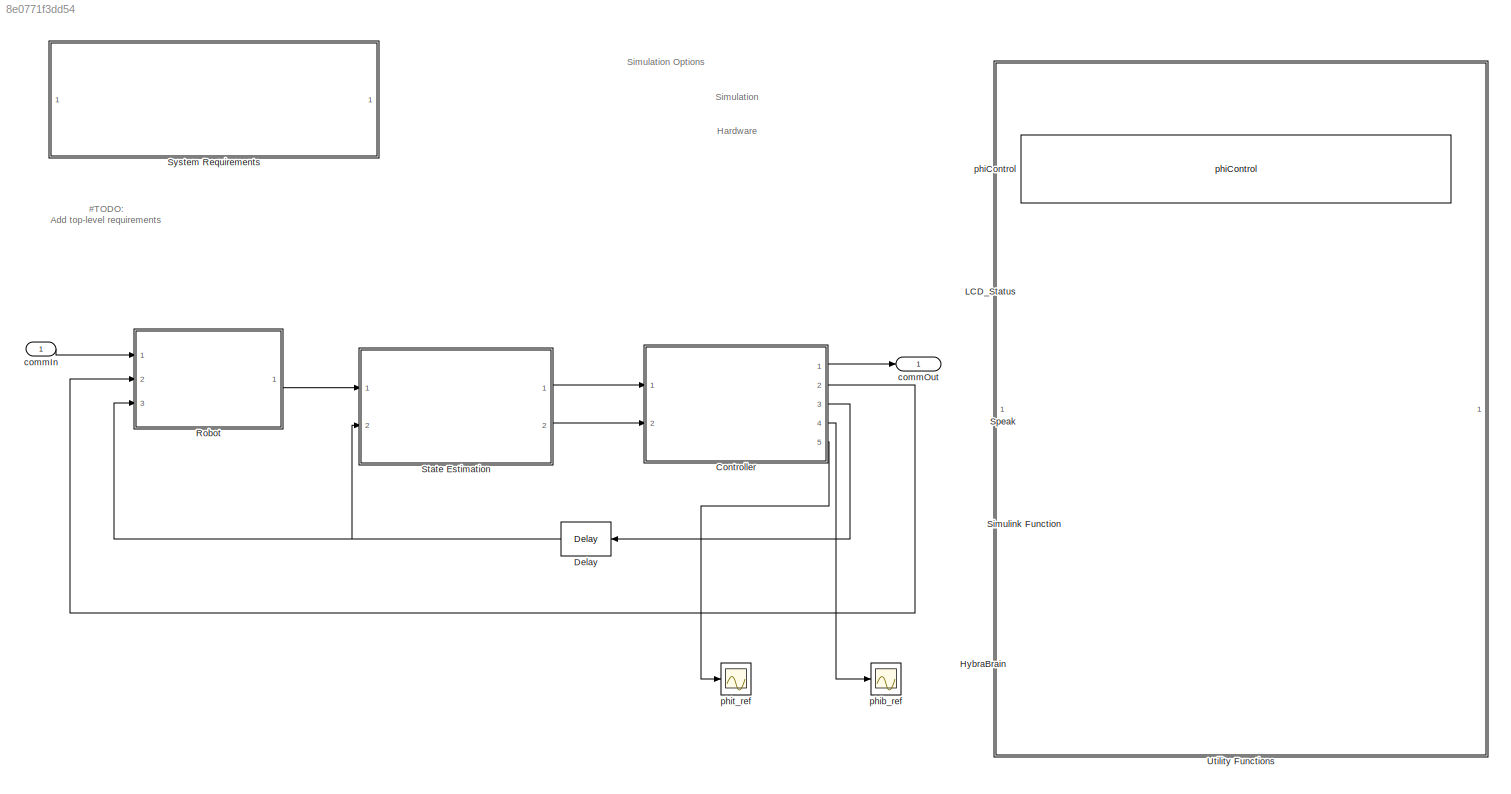
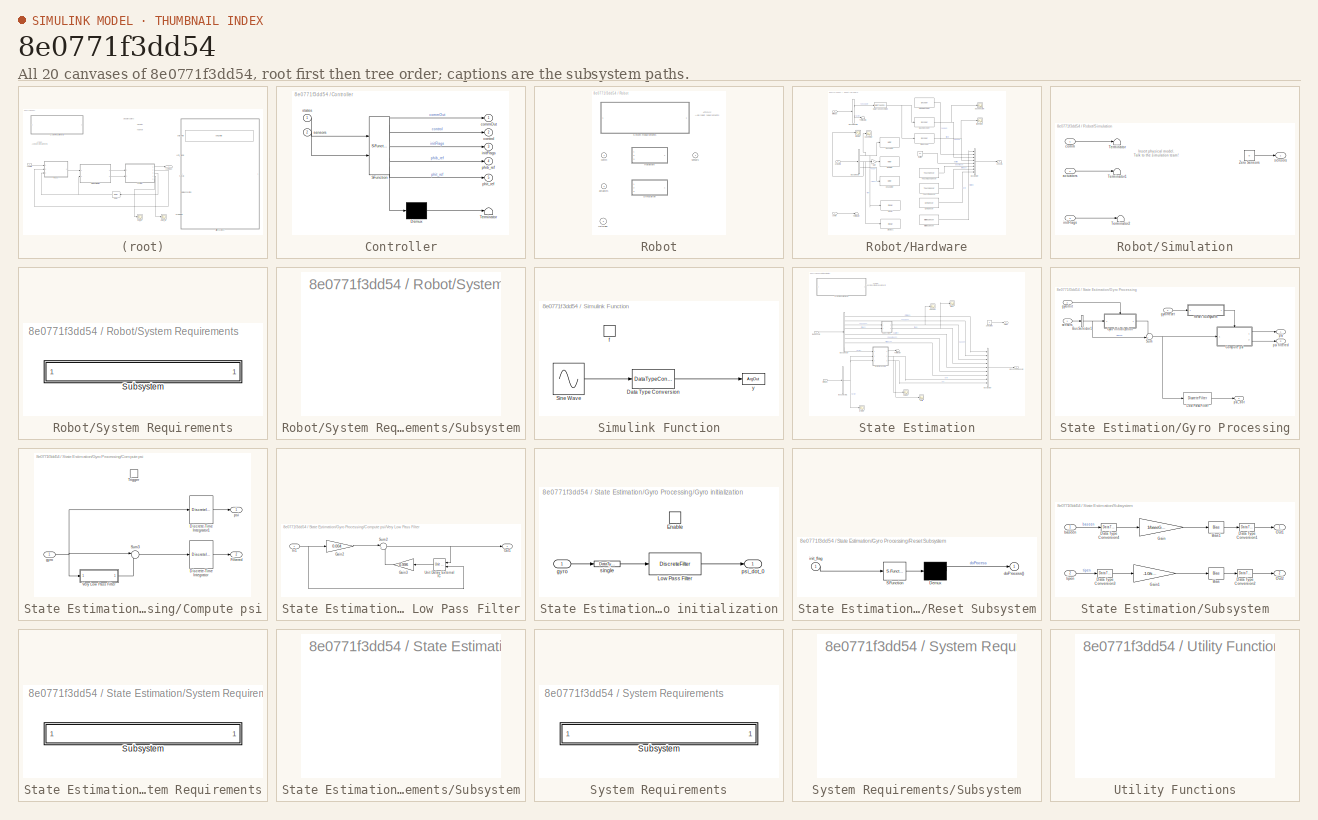
[diagram: thumbnail index - all 20 canvases of the model, root first then tree order]
MODEL slx_8e0771f3dd54
KIND model
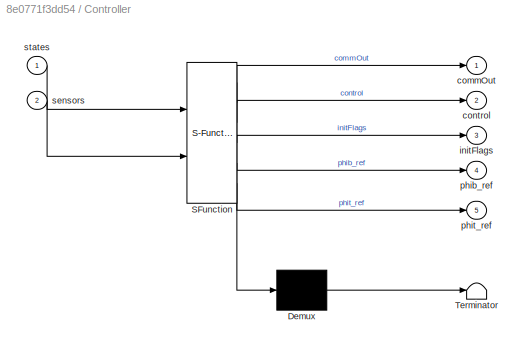
BLOCK [SubSystem] Controller
  ErrorFcn = Stateflow.Translate.translate
  PermitHierarchicalResolution = ExplicitOnly
  Ports = [2, 5]
  RequestExecContextInheritance = off
  SFBlockType = Chart
  TreatAsAtomicUnit = on
BLOCK [Demux] Controller/ Demux 
  Outputs = 1
  Ports = [1, 1]
BLOCK [S-Function] Controller/ SFunction 
  EnableBusSupport = on
  FunctionName = sf_sfun
  Parameters = baseoffset,tipoffset
  PortCounts = [2 6]
  Ports = [2, 6]
  Tag = Stateflow S-Function HydraTail 5
BLOCK [Terminator] Controller/ Terminator 
BLOCK [Outport] Controller/commOut
  IconDisplay = Port number
BLOCK [Outport] Controller/control
  IconDisplay = Port number
  Port = 2
BLOCK [Outport] Controller/initFlags
  IconDisplay = Port number
  Port = 3
BLOCK [Outport] Controller/phib_ref
  IconDisplay = Port number
  Port = 4
BLOCK [Outport] Controller/phit_ref
  IconDisplay = Port number
  Port = 5
BLOCK [Inport] Controller/sensors
  IconDisplay = Port number
  Port = 2
BLOCK [Inport] Controller/states
  IconDisplay = Port number
BLOCK [Delay] Delay
  AttributesFormatString = Removes algebraic loop
  DelayLength = 1
  InputPortMap = u0
  Ports = [1, 1]
  SampleTime = tModel
BLOCK [Reference] HybraBrain  REF=EV3Fcns/HybraBrain
  Ports = [0, 0, 0, 1]
  SourceBlock = EV3Fcns/HybraBrain
  SourceType = SubSystem
BLOCK [Reference] LCD_Status  REF=EV3Fcns/LCD_Status
  Ports = [0, 0, 0, 1]
  SourceBlock = EV3Fcns/LCD_Status
  SourceType = SubSystem
BLOCK [SubSystem] Robot
  OverrideUsingVariant = HardwareVar
  Ports = [3, 1]
  RequestExecContextInheritance = off
  Variant = on
  VariantControl = Variant1
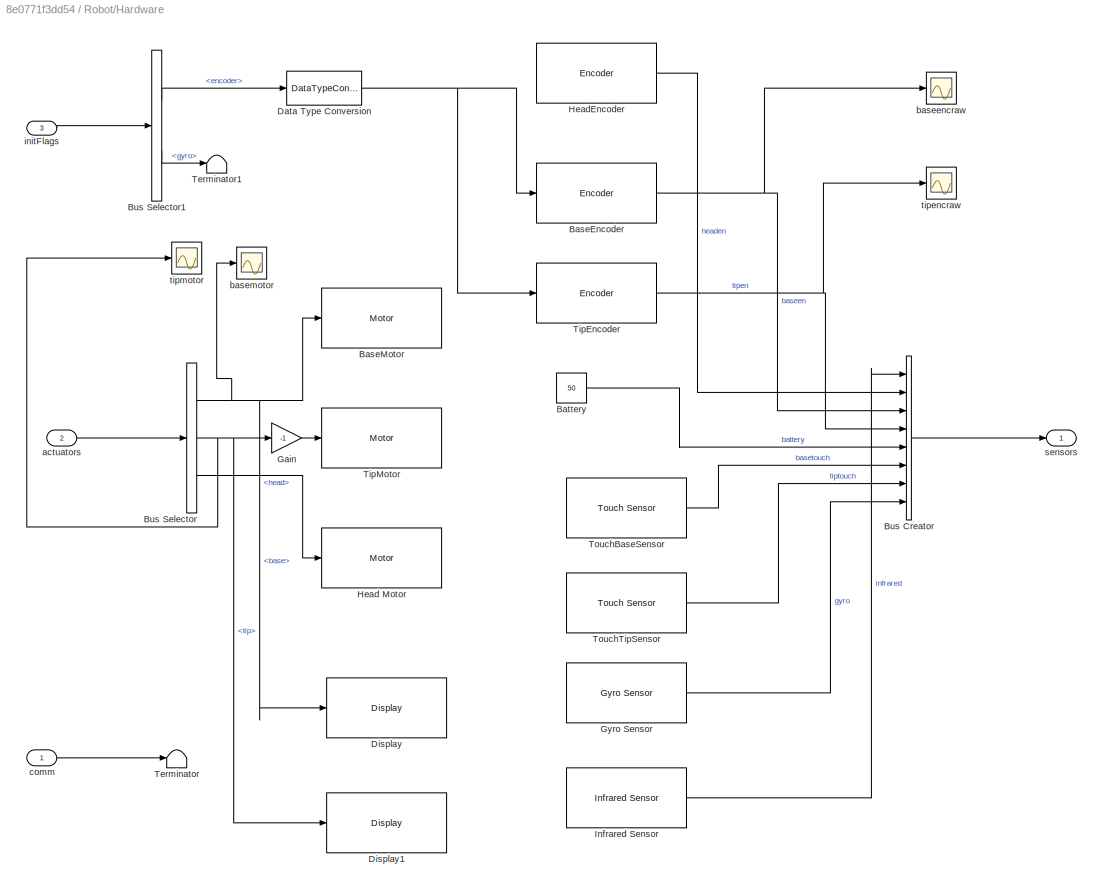
BLOCK [SubSystem] Robot/Hardware
  Ports = [3, 1]
  RequestExecContextInheritance = off
  VariantControl = HardwareVar
BLOCK [Reference] Robot/Hardware/BaseEncoder  REF=legoev3lib/Encoder
  Ports = [1, 1]
  SourceBlock = legoev3lib/Encoder
  SourceType = LEGO MINDSTORMS EV3 Encoder
  opMode = Reset by external signal
  portNumber = B
  sampleTime = tModel
BLOCK [Reference] Robot/Hardware/BaseMotor  REF=legoev3lib/Motor
  Ports = [1]
  SourceBlock = legoev3lib/Motor
  SourceType = LEGO MINDSTORMS EV3 Motor
  sportNumber = B
  sstopAction = Brake
BLOCK [Constant] Robot/Hardware/Battery
  OutDataTypeStr = uint8
  SampleTime = tModel
  Value = 50
BLOCK [BusCreator] Robot/Hardware/Bus Creator
  DisplayOption = bar
  Inputs = 8
  OutDataTypeStr = Bus: Sensors_Bus
  Ports = [8, 1]
BLOCK [BusSelector] Robot/Hardware/Bus Selector
  OutputSignals = base,tip,head
  Ports = [1, 3]
BLOCK [BusSelector] Robot/Hardware/Bus Selector1
  OutputSignals = encoder,gyro
  Ports = [1, 2]
BLOCK [DataTypeConversion] Robot/Hardware/Data Type Conversion
  OutDataTypeStr = int8
  RndMeth = Floor
  SaturateOnIntegerOverflow = off
BLOCK [Reference] Robot/Hardware/Display  REF=legoev3lib/Display
  Ports = [1]
  SourceBlock = legoev3lib/Display
  SourceType = LEGO MINDSTORMS EV3 Display
  slcdFormat = Decimal
  slcdLine = 1
  slcdStr = Base
BLOCK [Reference] Robot/Hardware/Display1  REF=legoev3lib/Display
  Ports = [1]
  SourceBlock = legoev3lib/Display
  SourceType = LEGO MINDSTORMS EV3 Display
  slcdFormat = Decimal
  slcdLine = 2
  slcdStr = Tip
BLOCK [Gain] Robot/Hardware/Gain
  Gain = -1
  OutDataTypeStr = Inherit: Inherit via internal rule
  ParamDataTypeStr = Inherit: Inherit via internal rule
  SaturateOnIntegerOverflow = off
BLOCK [Reference] Robot/Hardware/Gyro Sensor  REF=legoev3lib/Gyro Sensor
  Ports = [0, 1]
  SourceBlock = legoev3lib/Gyro Sensor
  SourceType = LEGO MINDSTORMS EV3 Gyro Sensor
  portNumber = 1
  sampleTime = tModel
BLOCK [Reference] Robot/Hardware/Head Motor  REF=legoev3lib/Motor
  Ports = [1]
  SourceBlock = legoev3lib/Motor
  SourceType = LEGO MINDSTORMS EV3 Motor
  sportNumber = C
  sstopAction = Brake
BLOCK [Reference] Robot/Hardware/HeadEncoder  REF=legoev3lib/Encoder
  Ports = [0, 1]
  SourceBlock = legoev3lib/Encoder
  SourceType = LEGO MINDSTORMS EV3 Encoder
  opMode = No reset
  portNumber = C
  sampleTime = tModel
BLOCK [Reference] Robot/Hardware/Infrared Sensor  REF=legoev3lib/Infrared Sensor
  Ports = [0, 1]
  SourceBlock = legoev3lib/Infrared Sensor
  SourceType = LEGO MINDSTORMS EV3 Infrared Sensor
  channelNumber = 2
  portNumber = 4
  sampleTime = tModel
BLOCK [Terminator] Robot/Hardware/Terminator
BLOCK [Terminator] Robot/Hardware/Terminator1
BLOCK [Reference] Robot/Hardware/TipEncoder  REF=legoev3lib/Encoder
  Ports = [1, 1]
  SourceBlock = legoev3lib/Encoder
  SourceType = LEGO MINDSTORMS EV3 Encoder
  opMode = Reset by external signal
  portNumber = A
  sampleTime = tModel
BLOCK [Reference] Robot/Hardware/TipMotor  REF=legoev3lib/Motor
  Ports = [1]
  SourceBlock = legoev3lib/Motor
  SourceType = LEGO MINDSTORMS EV3 Motor
  sportNumber = A
  sstopAction = Brake
BLOCK [Reference] Robot/Hardware/TouchBaseSensor  REF=legoev3lib/Touch Sensor
  Ports = [0, 1]
  SourceBlock = legoev3lib/Touch Sensor
  SourceType = LEGO MINDSTORMS EV3 Touch Sensor
  portNumber = 3
  sampleTime = tModel
BLOCK [Reference] Robot/Hardware/TouchTipSensor  REF=legoev3lib/Touch Sensor
  Ports = [0, 1]
  SourceBlock = legoev3lib/Touch Sensor
  SourceType = LEGO MINDSTORMS EV3 Touch Sensor
  portNumber = 2
  sampleTime = tModel
BLOCK [Inport] Robot/Hardware/actuators
  IconDisplay = Port number
  Port = 2
BLOCK [Scope] Robot/Hardware/baseencraw
  Floating = off
  NumInputPorts = 1
  Ports = [1]
  SaveName = ScopeData9
  ShowLegends = off
  YMax = -367
  YMin = -368
  ZoomMode = yonly
BLOCK [Scope] Robot/Hardware/basemotor
  Floating = off
  NumInputPorts = 1
  Ports = [1]
  SaveName = ScopeData4
  ShowLegends = off
BLOCK [Inport] Robot/Hardware/comm
  IconDisplay = Port number
BLOCK [Inport] Robot/Hardware/initFlags
  IconDisplay = Port number
  OutDataTypeStr = Bus: InitBus
  Port = 3
BLOCK [Outport] Robot/Hardware/sensors
  IconDisplay = Port number
  OutDataTypeStr = Bus: Sensors_Bus
BLOCK [Scope] Robot/Hardware/tipencraw
  Floating = off
  NumInputPorts = 1
  Ports = [1]
  SaveName = ScopeData10
  ShowLegends = off
  YMax = -1796
  YMin = -1798
  ZoomMode = yonly
BLOCK [Scope] Robot/Hardware/tipmotor
  Floating = off
  NumInputPorts = 1
  Ports = [1]
  SaveName = ScopeData5
  ShowLegends = off
BLOCK [SubSystem] Robot/Simulation
  Ports = [3, 1]
  RequestExecContextInheritance = off
  VariantControl = SimulationVar
BLOCK [Terminator] Robot/Simulation/Terminator
BLOCK [Terminator] Robot/Simulation/Terminator1
BLOCK [Terminator] Robot/Simulation/Terminator2
BLOCK [Constant] Robot/Simulation/Zero Sensors
  OutDataTypeStr = Bus: SensorsBus
  Value = 0
BLOCK [Inport] Robot/Simulation/actuators
  IconDisplay = Port number
  Port = 2
BLOCK [Inport] Robot/Simulation/comm
  IconDisplay = Port number
BLOCK [Inport] Robot/Simulation/initFlags
  IconDisplay = Port number
  OutDataTypeStr = Bus: InitBus
  Port = 3
BLOCK [Outport] Robot/Simulation/sensors
  IconDisplay = Port number
BLOCK [SubSystem] Robot/System Requirements
  CopyFcn = rmidispblock('create',gcbh)
  DeleteFcn = rmidispblock('delete',gcbh)
  LoadFcn = rmidispblock('load',gcbh)
  ModelCloseFcn = rmidispblock('close',gcbh)
  MoveFcn = rmidispblock('move',gcbh)
  OpenFcn = rmidispblock('open',gcbh)
  Ports = []
  PostSaveFcn = rmidispblock('open',gcbh)
  PreSaveFcn = rmidispblock('close',gcbh)
  RequestExecContextInheritance = off
  VariantControl = Variant
BLOCK [SubSystem] Robot/System Requirements/Subsystem
  OpenFcn = rmidispblock('openReq',gcbh);
  Ports = []
  RequestExecContextInheritance = off
BLOCK [Inport] Robot/actuators
  IconDisplay = Port number
  OutDataTypeStr = Bus: ControlBus
  Port = 2
BLOCK [Inport] Robot/comm
  IconDisplay = Port number
  OutDataTypeStr = Enum: Comm
BLOCK [Inport] Robot/initFlags
  IconDisplay = Port number
  OutDataTypeStr = Bus: InitBus
  Port = 3
BLOCK [Outport] Robot/sensors
  IconDisplay = Port number
  OutDataTypeStr = Bus: Sensors_Bus
BLOCK [SubSystem] Simulink Function
  Commented = on
  Ports = [0, 0, 0, 1]
  RequestExecContextInheritance = off
  TreatAsAtomicUnit = on
BLOCK [DataTypeConversion] Simulink Function/Data Type Conversion
  OutDataTypeStr = single
  RndMeth = Floor
  SaturateOnIntegerOverflow = off
BLOCK [Sin] Simulink Function/Sine Wave
  Amplitude = 360
  Ports = [0, 1]
BLOCK [TriggerPort] Simulink Function/f
  FunctionName = wave
  IsSimulinkFunction = on
  Ports = []
  StatesWhenEnabling = held
  TriggerType = function-call
BLOCK [ArgOut] Simulink Function/y
  ArgumentName = y
  DisableCoverage = on
  OutDataTypeStr = single
BLOCK [Reference] Speak  REF=EV3Fcns/Speak
  Ports = [0, 0, 0, 1]
  SourceBlock = EV3Fcns/Speak
  SourceType = SubSystem
BLOCK [SubSystem] State Estimation
  Ports = [2, 2]
  RequestExecContextInheritance = off
BLOCK [BusCreator] State Estimation/Bus Creator
  DisplayOption = bar
  Inputs = 9
  OutDataTypeStr = Bus: PSensors_Bus
  Ports = [9, 1]
BLOCK [BusSelector] State Estimation/Bus Selector
  OutputSignals = infrared,headen,baseen,tipen,battery,basetouch,tiptouch,gyro
  Ports = [1, 8]
BLOCK [BusSelector] State Estimation/Bus Selector1
  OutputSignals = gyro
  Ports = [1, 1]
BLOCK [SubSystem] State Estimation/Gyro Processing
  Ports = [3, 3]
  RequestExecContextInheritance = off
BLOCK [BusSelector] State Estimation/Gyro Processing/Bus Selector1
  OutputSignals = gyro
  Ports = [1, 1]
BLOCK [SubSystem] State Estimation/Gyro Processing/Compute psi
  Ports = [1, 2, 0, 1]
  RequestExecContextInheritance = off
BLOCK [DiscreteIntegrator] State Estimation/Gyro Processing/Compute psi/Discrete-Time Integrator
  Ports = [1, 1]
  SampleTime = -1
BLOCK [DiscreteIntegrator] State Estimation/Gyro Processing/Compute psi/Discrete-Time Integrator1
  Ports = [1, 1]
  SampleTime = -1
BLOCK [Outport] State Estimation/Gyro Processing/Compute psi/Filtered
  IconDisplay = Port number
  InitialOutput = 0
  Port = 2
BLOCK [Sum] State Estimation/Gyro Processing/Compute psi/Sum3
  IconShape = round
  InputSameDT = off
  Inputs = |+-
  OutDataTypeStr = Inherit: Inherit via internal rule
  Ports = [2, 1]
  SaturateOnIntegerOverflow = off
BLOCK [TriggerPort] State Estimation/Gyro Processing/Compute psi/Trigger
  PortDimensions = 1
  Ports = []
  StatesWhenEnabling = reset
  TriggerType = function-call
BLOCK [SubSystem] State Estimation/Gyro Processing/Compute psi/Very Low Pass Filter
  Ports = [1, 1]
  RequestExecContextInheritance = off
BLOCK [Gain] State Estimation/Gyro Processing/Compute psi/Very Low Pass Filter/Gain2
  Gain = 0.004
  OutDataTypeStr = Inherit: Inherit via internal rule
  ParamDataTypeStr = Inherit: Inherit via internal rule
  SaturateOnIntegerOverflow = off
BLOCK [Gain] State Estimation/Gyro Processing/Compute psi/Very Low Pass Filter/Gain3
  Gain = 0.996
  OutDataTypeStr = Inherit: Inherit via internal rule
  ParamDataTypeStr = Inherit: Inherit via internal rule
  SaturateOnIntegerOverflow = off
BLOCK [Inport] State Estimation/Gyro Processing/Compute psi/Very Low Pass Filter/In1
  IconDisplay = Port number
BLOCK [Outport] State Estimation/Gyro Processing/Compute psi/Very Low Pass Filter/Out1
  IconDisplay = Port number
BLOCK [Sum] State Estimation/Gyro Processing/Compute psi/Very Low Pass Filter/Sum2
  IconShape = round
  InputSameDT = off
  Inputs = |++
  OutDataTypeStr = Inherit: Inherit via internal rule
  Ports = [2, 1]
  SaturateOnIntegerOverflow = off
BLOCK [Reference] State Estimation/Gyro Processing/Compute psi/Very Low Pass Filter/Unit Delay External IC  REF=simulink/Additional Math
& Discrete/Additional
Discrete/Unit Delay
External IC
  Ports = [2, 1]
  SourceBlock = simulink/Additional Math\n& Discrete/Additional\nDiscrete/Unit Delay\nExternal IC
  SourceType = Unit Delay External Initial Condition
  tsamp = -1
BLOCK [Inport] State Estimation/Gyro Processing/Compute psi/gyro
  IconDisplay = Port number
BLOCK [Outport] State Estimation/Gyro Processing/Compute psi/psi
  IconDisplay = Port number
  InitialOutput = 0
BLOCK [SubSystem] State Estimation/Gyro Processing/Gyro initialization
  Ports = [1, 1, 1]
  RequestExecContextInheritance = off
  TreatAsAtomicUnit = on
BLOCK [EnablePort] State Estimation/Gyro Processing/Gyro initialization/Enable
  Ports = []
  StatesWhenEnabling = reset
BLOCK [DiscreteFilter] State Estimation/Gyro Processing/Gyro initialization/Low Pass Filter
  Denominator = [1 -0.99]
  InputPortMap = u0
  Numerator = [.01]
  Ports = [1, 1]
BLOCK [Inport] State Estimation/Gyro Processing/Gyro initialization/gyro
  IconDisplay = Port number
BLOCK [Outport] State Estimation/Gyro Processing/Gyro initialization/psi_dot_0
  IconDisplay = Port number
  InitialOutput = 0
BLOCK [DataTypeConversion] State Estimation/Gyro Processing/Gyro initialization/single
  OutDataTypeStr = single
  RndMeth = Floor
  SaturateOnIntegerOverflow = off
BLOCK [DiscreteFilter] State Estimation/Gyro Processing/Low Pass Filter
  Denominator = [1 -0.99]
  InputPortMap = u0
  Numerator = [.01]
  Ports = [1, 1]
BLOCK [SubSystem] State Estimation/Gyro Processing/Reset Subsystem
  ErrorFcn = Stateflow.Translate.translate
  PermitHierarchicalResolution = ExplicitOnly
  Ports = [1, 1]
  RequestExecContextInheritance = off
  SFBlockType = Chart
  TreatAsAtomicUnit = on
BLOCK [Demux] State Estimation/Gyro Processing/Reset Subsystem/ Demux 
  Outputs = 1
  Ports = [1, 1]
BLOCK [S-Function] State Estimation/Gyro Processing/Reset Subsystem/ SFunction 
  EnableBusSupport = on
  FunctionName = sf_sfun
  PortCounts = [1 1]
  Ports = [1, 1]
  Tag = Stateflow S-Function HydraTail 1
BLOCK [Outport] State Estimation/Gyro Processing/Reset Subsystem/doProcess()
  IconDisplay = Port number
BLOCK [Inport] State Estimation/Gyro Processing/Reset Subsystem/init_flag
  IconDisplay = Port number
BLOCK [Sum] State Estimation/Gyro Processing/Sum
  IconShape = round
  InputSameDT = off
  Inputs = -+|
  OutDataTypeStr = Inherit: Inherit via internal rule
  Ports = [2, 1]
  SaturateOnIntegerOverflow = off
BLOCK [Inport] State Estimation/Gyro Processing/gyroInit
  IconDisplay = Port number
  Port = 2
BLOCK [Inport] State Estimation/Gyro Processing/gyroReset
  IconDisplay = Port number
  Port = 3
BLOCK [Outport] State Estimation/Gyro Processing/psi
  IconDisplay = Port number
BLOCK [Outport] State Estimation/Gyro Processing/psi filtered
  IconDisplay = Port number
  Port = 3
BLOCK [Outport] State Estimation/Gyro Processing/psi_dot
  IconDisplay = Port number
  Port = 2
BLOCK [Inport] State Estimation/Gyro Processing/sensors
  IconDisplay = Port number
BLOCK [SubSystem] State Estimation/Subsystem
  Ports = [2, 2]
  RequestExecContextInheritance = off
BLOCK [Bias] State Estimation/Subsystem/Bias
  Bias = -tipoffset
  SaturateOnIntegerOverflow = off
BLOCK [Bias] State Estimation/Subsystem/Bias1
  Bias = baseoffset
  SaturateOnIntegerOverflow = off
BLOCK [DataTypeConversion] State Estimation/Subsystem/Data Type Conversion1
  OutDataTypeStr = int32
  RndMeth = Floor
  SaturateOnIntegerOverflow = off
BLOCK [DataTypeConversion] State Estimation/Subsystem/Data Type Conversion2
  OutDataTypeStr = int32
  RndMeth = Floor
  SaturateOnIntegerOverflow = off
BLOCK [DataTypeConversion] State Estimation/Subsystem/Data Type Conversion3
  OutDataTypeStr = single
  RndMeth = Floor
  SaturateOnIntegerOverflow = off
BLOCK [DataTypeConversion] State Estimation/Subsystem/Data Type Conversion4
  OutDataTypeStr = single
  RndMeth = Floor
  SaturateOnIntegerOverflow = off
BLOCK [Gain] State Estimation/Subsystem/Gain
  Gain = 1/baseGRatio
  OutDataTypeStr = single
  ParamDataTypeStr = single
  SaturateOnIntegerOverflow = off
BLOCK [Gain] State Estimation/Subsystem/Gain1
  Gain = -1.0/tipGRatio
  OutDataTypeStr = single
  ParamDataTypeStr = Inherit: Inherit via internal rule
  SaturateOnIntegerOverflow = off
BLOCK [Outport] State Estimation/Subsystem/Out1
  IconDisplay = Port number
BLOCK [Outport] State Estimation/Subsystem/Out2
  IconDisplay = Port number
  Port = 2
BLOCK [Inport] State Estimation/Subsystem/baseen
  IconDisplay = Port number
BLOCK [Inport] State Estimation/Subsystem/tipen
  IconDisplay = Port number
  Port = 2
BLOCK [SubSystem] State Estimation/System Requirements
  CopyFcn = rmidispblock('create',gcbh)
  DeleteFcn = rmidispblock('delete',gcbh)
  LoadFcn = rmidispblock('load',gcbh)
  ModelCloseFcn = rmidispblock('close',gcbh)
  MoveFcn = rmidispblock('move',gcbh)
  OpenFcn = rmidispblock('open',gcbh)
  Ports = []
  PostSaveFcn = rmidispblock('open',gcbh)
  PreSaveFcn = rmidispblock('close',gcbh)
  RequestExecContextInheritance = off
BLOCK [SubSystem] State Estimation/System Requirements/Subsystem
  OpenFcn = rmidispblock('openReq',gcbh);
  Ports = []
  RequestExecContextInheritance = off
BLOCK [Terminator] State Estimation/Terminator
BLOCK [Constant] State Estimation/Zero States
  OutDataTypeStr = Bus: Balancer_States_Bus
  SampleTime = tModel
  Value = 0
BLOCK [Scope] State Estimation/baseen
  Floating = off
  NumInputPorts = 1
  Ports = [1]
  ShowLegends = off
  YMax = 109
  YMin = 107
  ZoomMode = yonly
BLOCK [Scope] State Estimation/gyro init
  Floating = off
  NumInputPorts = 1
  Ports = [1]
  SaveName = ScopeData6
  ShowLegends = off
  YMax = 1
  YMin = -1
BLOCK [Inport] State Estimation/initFlags
  IconDisplay = Port number
  OutDataTypeStr = Bus: InitBus
  Port = 2
BLOCK [Outport] State Estimation/processedSensors
  IconDisplay = Port number
  OutDataTypeStr = Bus: PSensors_Bus
  Port = 2
BLOCK [Scope] State Estimation/psidot
  Floating = off
  NumInputPorts = 1
  Ports = [1]
  SaveName = ScopeData2
  ShowLegends = off
  YMax = 4
  ZoomMode = yonly
BLOCK [Scope] State Estimation/psifilt
  Floating = off
  NumInputPorts = 1
  Ports = [1]
  SaveName = ScopeData3
  ShowLegends = off
  YMax = 10
  ZoomMode = xonly
BLOCK [Inport] State Estimation/rawSensors
  IconDisplay = Port number
  OutDataTypeStr = Bus: Sensors_Bus
BLOCK [Outport] State Estimation/states
  IconDisplay = Port number
  OutDataTypeStr = Bus: Balancer_States_Bus
BLOCK [Scope] State Estimation/tipen
  Floating = off
  NumInputPorts = 1
  Ports = [1]
  SaveName = ScopeData1
  ShowLegends = off
  ZoomMode = xonly
BLOCK [SubSystem] System Requirements
  CopyFcn = rmidispblock('create',gcbh)
  DeleteFcn = rmidispblock('delete',gcbh)
  LoadFcn = rmidispblock('load',gcbh)
  ModelCloseFcn = rmidispblock('close',gcbh)
  MoveFcn = rmidispblock('move',gcbh)
  OpenFcn = rmidispblock('open',gcbh)
  Ports = []
  PostSaveFcn = rmidispblock('open',gcbh)
  PreSaveFcn = rmidispblock('close',gcbh)
  RequestExecContextInheritance = off
BLOCK [SubSystem] System Requirements/Subsystem
  OpenFcn = rmidispblock('openReq',gcbh);
  Ports = []
  RequestExecContextInheritance = off
BLOCK [SubSystem] Utility Functions
  Ports = []
  RequestExecContextInheritance = off
BLOCK [Inport] commIn
  IconDisplay = Port number
  OutDataTypeStr = Enum: Comm
BLOCK [Outport] commOut
  IconDisplay = Port number
  OutDataTypeStr = Enum: Comm
BLOCK [Reference] phiControl  REF=EV3Fcns/phiControl
  Ports = [0, 0, 0, 1]
  SourceBlock = EV3Fcns/phiControl
  SourceType = SubSystem
BLOCK [Scope] phib_ref
  Floating = off
  NumInputPorts = 1
  Ports = [1]
  SaveName = ScopeData7
  ShowLegends = off
  ZoomMode = xonly
BLOCK [Scope] phit_ref
  Floating = off
  NumInputPorts = 1
  Ports = [1]
  SaveName = ScopeData8
  ShowLegends = off
  ZoomMode = xonly
ANNOTATION (root): #TODO: Add top-level requirements
ANNOTATION (root): Simulation Options
ANNOTATION (root): Hardware
ANNOTATION (root): Simulation
ANNOTATION Robot: #TODO: Add robot requirements
ANNOTATION Robot/Simulation: Insert physical model. Talk to the simulation team!
ANNOTATION State Estimation: #TODO: Add state estimation requirements
LINE Controller:1 -> commOut:1
LINE Controller:2 -> Robot:2
LINE Controller:3 -> Delay:1
LINE Controller:4 -> phib_ref:1
LINE Controller:5 -> phit_ref:1
NET Delay:1 -> Robot:3, State Estimation:2
NET Robot/Hardware/BaseEncoder:1 -> Robot/Hardware/Bus Creator:3, Robot/Hardware/baseencraw:1
LINE Robot/Hardware/Battery:1 -> Robot/Hardware/Bus Creator:5
LINE Robot/Hardware/Bus Creator:1 -> Robot/Hardware/sensors:1
LINE Robot/Hardware/Bus Selector1:1 -> Robot/Hardware/Data Type Conversion:1
LINE Robot/Hardware/Bus Selector1:2 -> Robot/Hardware/Terminator1:1
NET Robot/Hardware/Bus Selector:1 -> Robot/Hardware/BaseMotor:1, Robot/Hardware/Display:1, Robot/Hardware/basemotor:1
NET Robot/Hardware/Bus Selector:2 -> Robot/Hardware/Display1:1, Robot/Hardware/Gain:1, Robot/Hardware/tipmotor:1
LINE Robot/Hardware/Bus Selector:3 -> Robot/Hardware/Head Motor:1
NET Robot/Hardware/Data Type Conversion:1 -> Robot/Hardware/BaseEncoder:1, Robot/Hardware/TipEncoder:1
LINE Robot/Hardware/Gain:1 -> Robot/Hardware/TipMotor:1
LINE Robot/Hardware/Gyro Sensor:1 -> Robot/Hardware/Bus Creator:8
LINE Robot/Hardware/HeadEncoder:1 -> Robot/Hardware/Bus Creator:2
LINE Robot/Hardware/Infrared Sensor:1 -> Robot/Hardware/Bus Creator:1
NET Robot/Hardware/TipEncoder:1 -> Robot/Hardware/Bus Creator:4, Robot/Hardware/tipencraw:1
LINE Robot/Hardware/TouchBaseSensor:1 -> Robot/Hardware/Bus Creator:6
LINE Robot/Hardware/TouchTipSensor:1 -> Robot/Hardware/Bus Creator:7
LINE Robot/Hardware/actuators:1 -> Robot/Hardware/Bus Selector:1
LINE Robot/Hardware/comm:1 -> Robot/Hardware/Terminator:1
LINE Robot/Hardware/initFlags:1 -> Robot/Hardware/Bus Selector1:1
LINE Robot/Simulation/Zero Sensors:1 -> Robot/Simulation/sensors:1
LINE Robot/Simulation/actuators:1 -> Robot/Simulation/Terminator1:1
LINE Robot/Simulation/comm:1 -> Robot/Simulation/Terminator:1
LINE Robot/Simulation/initFlags:1 -> Robot/Simulation/Terminator2:1
LINE Robot:1 -> State Estimation:1
LINE Simulink Function/Data Type Conversion:1 -> Simulink Function/y:1
LINE Simulink Function/Sine Wave:1 -> Simulink Function/Data Type Conversion:1
LINE State Estimation/Bus Creator:1 -> State Estimation/processedSensors:1
NET State Estimation/Bus Selector1:1 -> State Estimation/Gyro Processing:2, State Estimation/Gyro Processing:3, State Estimation/gyro init:1
LINE State Estimation/Bus Selector:1 -> State Estimation/Bus Creator:1
LINE State Estimation/Bus Selector:2 -> State Estimation/Bus Creator:2
LINE State Estimation/Bus Selector:3 -> State Estimation/Subsystem:1
LINE State Estimation/Bus Selector:4 -> State Estimation/Subsystem:2
LINE State Estimation/Bus Selector:5 -> State Estimation/Bus Creator:5
LINE State Estimation/Bus Selector:6 -> State Estimation/Bus Creator:6
LINE State Estimation/Bus Selector:7 -> State Estimation/Bus Creator:7
LINE State Estimation/Bus Selector:8 -> State Estimation/Gyro Processing:1
NET State Estimation/Gyro Processing/Bus Selector1:1 -> State Estimation/Gyro Processing/Gyro initialization:1, State Estimation/Gyro Processing/Sum:2
LINE State Estimation/Gyro Processing/Compute psi/Discrete-Time Integrator1:1 -> State Estimation/Gyro Processing/Compute psi/psi:1
LINE State Estimation/Gyro Processing/Compute psi/Discrete-Time Integrator:1 -> State Estimation/Gyro Processing/Compute psi/Filtered:1
LINE State Estimation/Gyro Processing/Compute psi/Sum3:1 -> State Estimation/Gyro Processing/Compute psi/Discrete-Time Integrator:1
LINE State Estimation/Gyro Processing/Compute psi/Very Low Pass Filter/Gain2:1 -> State Estimation/Gyro Processing/Compute psi/Very Low Pass Filter/Sum2:1
LINE State Estimation/Gyro Processing/Compute psi/Very Low Pass Filter/Gain3:1 -> State Estimation/Gyro Processing/Compute psi/Very Low Pass Filter/Sum2:2
NET State Estimation/Gyro Processing/Compute psi/Very Low Pass Filter/In1:1 -> State Estimation/Gyro Processing/Compute psi/Very Low Pass Filter/Gain2:1, State Estimation/Gyro Processing/Compute psi/Very Low Pass Filter/Unit Delay External IC:2
NET State Estimation/Gyro Processing/Compute psi/Very Low Pass Filter/Sum2:1 -> State Estimation/Gyro Processing/Compute psi/Very Low Pass Filter/Out1:1, State Estimation/Gyro Processing/Compute psi/Very Low Pass Filter/Unit Delay External IC:1
LINE State Estimation/Gyro Processing/Compute psi/Very Low Pass Filter/Unit Delay External IC:1 -> State Estimation/Gyro Processing/Compute psi/Very Low Pass Filter/Gain3:1
LINE State Estimation/Gyro Processing/Compute psi/Very Low Pass Filter:1 -> State Estimation/Gyro Processing/Compute psi/Sum3:2
NET State Estimation/Gyro Processing/Compute psi/gyro:1 -> State Estimation/Gyro Processing/Compute psi/Discrete-Time Integrator1:1, State Estimation/Gyro Processing/Compute psi/Sum3:1, State Estimation/Gyro Processing/Compute psi/Very Low Pass Filter:1
LINE State Estimation/Gyro Processing/Compute psi:1 -> State Estimation/Gyro Processing/psi:1
LINE State Estimation/Gyro Processing/Compute psi:2 -> State Estimation/Gyro Processing/psi filtered:1
LINE State Estimation/Gyro Processing/Gyro initialization/Low Pass Filter:1 -> State Estimation/Gyro Processing/Gyro initialization/psi_dot_0:1
LINE State Estimation/Gyro Processing/Gyro initialization/gyro:1 -> State Estimation/Gyro Processing/Gyro initialization/single:1
LINE State Estimation/Gyro Processing/Gyro initialization/single:1 -> State Estimation/Gyro Processing/Gyro initialization/Low Pass Filter:1
LINE State Estimation/Gyro Processing/Gyro initialization:1 -> State Estimation/Gyro Processing/Sum:1
LINE State Estimation/Gyro Processing/Low Pass Filter:1 -> State Estimation/Gyro Processing/psi_dot:1
LINE State Estimation/Gyro Processing/Reset Subsystem:1 -> State Estimation/Gyro Processing/Compute psi:trigger
NET State Estimation/Gyro Processing/Sum:1 -> State Estimation/Gyro Processing/Compute psi:1, State Estimation/Gyro Processing/Low Pass Filter:1
LINE State Estimation/Gyro Processing/gyroInit:1 -> State Estimation/Gyro Processing/Gyro initialization:enable
LINE State Estimation/Gyro Processing/gyroReset:1 -> State Estimation/Gyro Processing/Reset Subsystem:1
LINE State Estimation/Gyro Processing/sensors:1 -> State Estimation/Gyro Processing/Bus Selector1:1
LINE State Estimation/Gyro Processing:1 -> State Estimation/Terminator:1
NET State Estimation/Gyro Processing:2 -> State Estimation/Bus Creator:8, State Estimation/psidot:1
NET State Estimation/Gyro Processing:3 -> State Estimation/Bus Creator:9, State Estimation/psifilt:1
LINE State Estimation/Subsystem/Bias1:1 -> State Estimation/Subsystem/Data Type Conversion1:1
LINE State Estimation/Subsystem/Bias:1 -> State Estimation/Subsystem/Data Type Conversion2:1
LINE State Estimation/Subsystem/Data Type Conversion1:1 -> State Estimation/Subsystem/Out1:1
LINE State Estimation/Subsystem/Data Type Conversion2:1 -> State Estimation/Subsystem/Out2:1
LINE State Estimation/Subsystem/Data Type Conversion3:1 -> State Estimation/Subsystem/Gain1:1
LINE State Estimation/Subsystem/Data Type Conversion4:1 -> State Estimation/Subsystem/Gain:1
LINE State Estimation/Subsystem/Gain1:1 -> State Estimation/Subsystem/Bias:1
LINE State Estimation/Subsystem/Gain:1 -> State Estimation/Subsystem/Bias1:1
LINE State Estimation/Subsystem/baseen:1 -> State Estimation/Subsystem/Data Type Conversion4:1
LINE State Estimation/Subsystem/tipen:1 -> State Estimation/Subsystem/Data Type Conversion3:1
NET State Estimation/Subsystem:1 -> State Estimation/Bus Creator:3, State Estimation/baseen:1
NET State Estimation/Subsystem:2 -> State Estimation/Bus Creator:4, State Estimation/tipen:1
LINE State Estimation/Zero States:1 -> State Estimation/states:1
LINE State Estimation/initFlags:1 -> State Estimation/Bus Selector1:1
LINE State Estimation/rawSensors:1 -> State Estimation/Bus Selector:1
LINE State Estimation:1 -> Controller:1
LINE State Estimation:2 -> Controller:2
LINE commIn:1 -> Robot:1
note: NET lines group one-source signal fan-out (src -> all destinations, sorted); 1:1 wires keep LINE
CHART State Estimation/Gyro Processing/Reset Subsystem states=1 transitions=2
  STATE_LABEL 'CheckForReset\nbind: doProcess;\nentry: doProcess;\nduring: doProcess;'
CHART Controller states=39 transitions=52
  STATE_LABEL 'HeadMotion\nen,du:'
  STATE_LABEL 'LookForward\nen,du:\n%do nothing'
  STATE_LABEL 'LookAtSpehro1\n'
  STATE_LABEL 'LookAtSpehro2'
  STATE_LABEL 'after(10,sec)'
  STATE_LABEL 'after(10,sec)'
  STATE_LABEL 'LookForward\nen,du:\n%do nothing'
  STATE_LABEL 'LookAtSpehro1\n'
  STATE_LABEL 'LookAtSpehro2'
  STATE_LABEL 'initBuses'
  STATE_LABEL '% Control bus\n{\ncontrol.tip = int8(0);\ncontrol.base = int8(0);\ncontrol.head = int8(0);\n}'
  STATE_LABEL '% Initialization flags\n{\ninitFlags.encoder = false;\ninitFlags.gyro = false; \n}'
  STATE_LABEL 'BaseTouchControl\nen,du:\n'
  STATE_LABEL 'AntiClockwise\nen,du:\ncontrol.base = base;\n'
  STATE_LABEL 'AntiClockwiseInit\nen,du:\ncontrol.base = base;\n'
  STATE_LABEL 'NOP\nen,du:\n    control.base = int8(0);'
  STATE_LABEL 'Clockwise\nen,du:\ncontrol.base = base;\n'
  STATE_LABEL 'ClockwiseInit\nen,du:\ncontrol.base = base;\n'
  STATE_LABEL '[sensors.basetouch ==1 ]{edgebase=int8(-1)}'
  STATE_LABEL 'after(1,sec)'
  STATE_LABEL '[base > 0]'
  STATE_LABEL '[base < 0]'
  STATE_LABEL '[base>0]'
  STATE_LABEL '[base > 0 && edgebase > 0]'
  STATE_LABEL '[base<0]'
  STATE_LABEL '[sensors.basetouch ==1 ]{edgebase= int8(1) }'
  STATE_LABEL '[base < 0 && edgebase < 0]'
  STATE_LABEL 'after(1,sec)'
  STATE_LABEL 'AntiClockwise\nen,du:\ncontrol.base = base;\n'
  STATE_LABEL 'AntiClockwiseInit\nen,du:\ncontrol.base = base;\n'
  STATE_LABEL 'NOP\nen,du:\n    control.base = int8(0);'
  STATE_LABEL 'Clockwise\nen,du:\ncontrol.base = base;\n'
  STATE_LABEL 'ClockwiseInit\nen,du:\ncontrol.base = base;\n'
  STATE_LABEL 'TipTouchControl\nen,du:\n'
  STATE_LABEL 'AntiClockwise\nen,du:\ncontrol.tip = tip;\n'
  STATE_LABEL 'AntiClockwiseInit\nen,du:\ncontrol.tip = tip;\n'
  STATE_LABEL 'NOP\nen,du:\n    control.tip = int8(0);'
  STATE_LABEL 'Clockwise\nen,du:\ncontrol.tip = tip;\n'
  STATE_LABEL 'ClockwiseInit\nen,du:\ncontrol.tip = tip;\n'
  STATE_LABEL '[sensors.tiptouch ==1 ]{edgetip=int8(-1)}'
